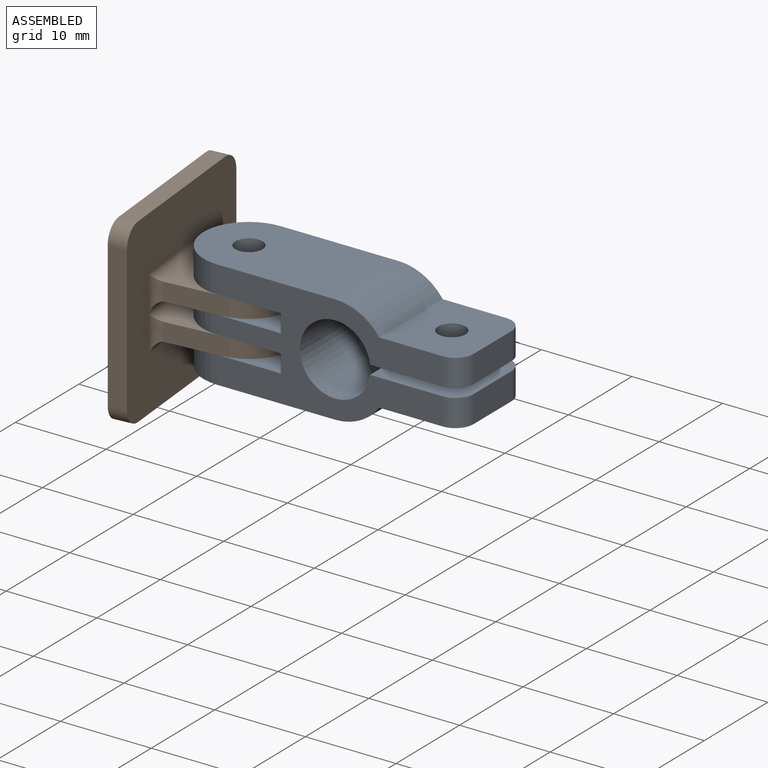
[diagram: assembled view]
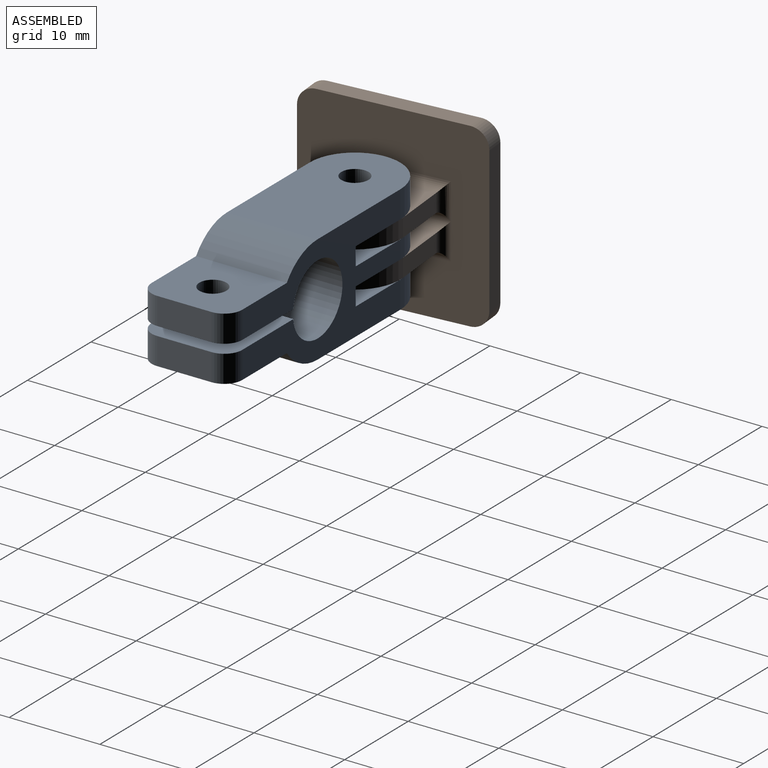
[diagram: assembled view, second angle]
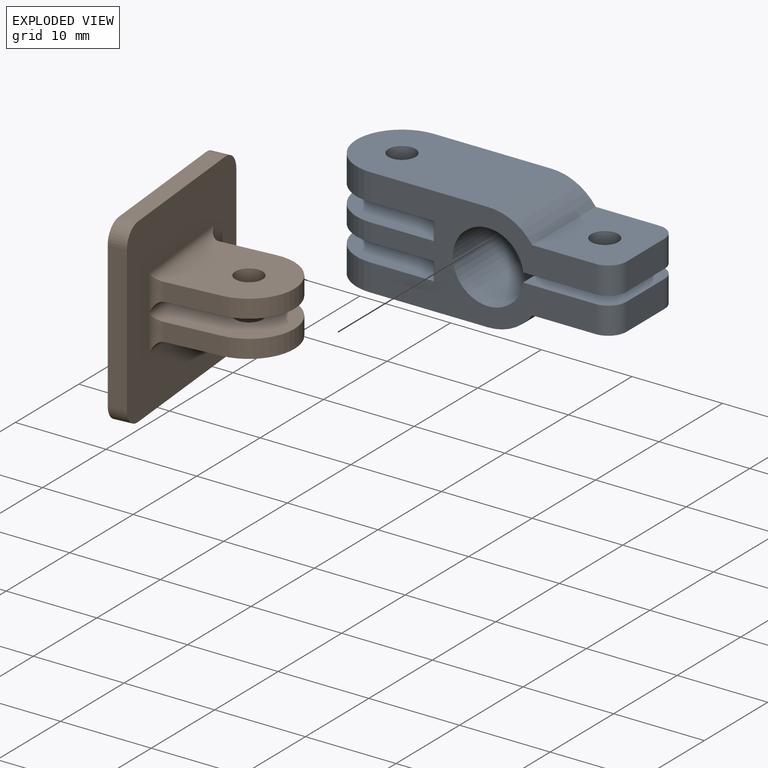
[diagram: exploded view]
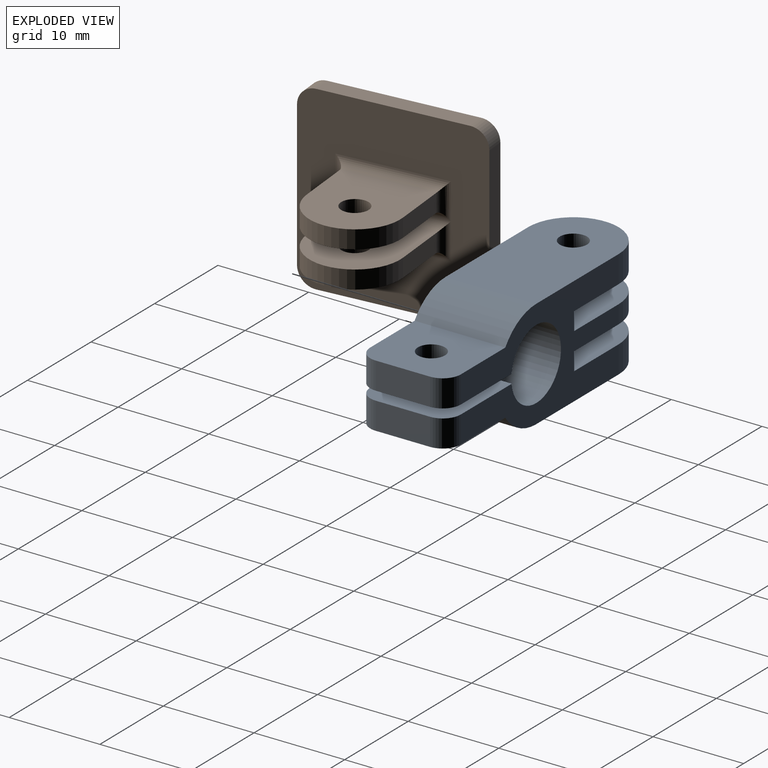
[diagram: exploded view, second angle]
ASSEMBLY  parts=2 mates=2
PART A: 31 faces, bbox 31.9x10x12 mm
  f0: plane 18x10mm, normal (0,0,1), area 162.2mm2, adj f9,f17,f18,f22,f24
  f1: plane 12x10mm, normal (0,0,-1), area 102.2mm2, adj f10,f17,f18,f22,f24
  f2: plane 12x10mm, normal (0,0,1), area 102.2mm2, adj f10,f17,f18,f21,f25
  f3: plane 12x10mm, normal (0,0,-1), area 102.2mm2, adj f11,f17,f18,f21,f25
  f4: plane 12x10mm, normal (0,0,1), area 102.2mm2, adj f11,f17,f18,f20,f26
  f5: cylinder r=3.9mm len=10mm, axis (0,1,0), area 235mm2, adj f6,f16,f17,f18
  f6: plane 10x10mm, normal (0,0,-1), area 91.2mm2, adj f5,f7,f17,f18,f23,f28,f30
  f7: plane 6x3mm, normal (1,0,0), area 18mm2, adj f6,f8,f28,f30
  f8: plane 10x8.99mm, normal (0,0,1), area 81.2mm2, adj f7,f9,f17,f18,f23,f28,f30
  f9: cylinder r=6mm len=10mm, axis (0,1,0), area 56.9mm2, adj f0,f8,f17,f18
  f10: plane 10x2mm, normal (-1,0,0), area 20mm2, adj f1,f2,f17,f18
  f11: plane 10x2mm, normal (-1,0,0), area 20mm2, adj f3,f4,f17,f18
  f12: plane 18x10mm, normal (0,0,-1), area 162.2mm2, adj f13,f17,f18,f20,f26
  f13: cylinder r=6mm len=10mm, axis (0,1,0), area 56.9mm2, adj f12,f14,f17,f18
  f14: plane 10x8.99mm, normal (0,0,-1), area 81.2mm2, adj f13,f15,f17,f18,f19,f27,f29
  f15: plane 6x3mm, normal (1,0,0), area 18mm2, adj f14,f16,f27,f29
  f16: plane 10x10mm, normal (0,0,1), area 91.2mm2, adj f5,f15,f17,f18,f19,f27,f29
  f17: plane 24.87x12mm, normal (0,-1,0), area 172.4mm2, adj f0,f1,f2,f3,f4,f5,f6,f8
  f18: plane 24.87x12mm, normal (0,1,0), area 172.4mm2, adj f0,f1,f2,f3,f4,f5,f6,f8
  f19: cylinder r=1.5mm len=3mm, axis (0,0,-1), area 28.3mm2, adj f14,f16
  f20: cylinder r=1.5mm len=3mm, axis (0,0,-1), area 28.3mm2, adj f4,f12
  f21: cylinder r=1.5mm len=3mm, axis (0,0,-1), area 18.8mm2, adj f2,f3
  f22: cylinder r=1.5mm len=3mm, axis (0,0,-1), area 28.3mm2, adj f0,f1
  f23: cylinder r=1.5mm len=3mm, axis (0,0,-1), area 28.3mm2, adj f6,f8
  f24: cylinder r=5mm len=10mm, axis (0,0,-1), area 47.1mm2, adj f0,f1,f17,f18
  f25: cylinder r=5mm len=10mm, axis (0,0,-1), area 31.4mm2, adj f2,f3,f17,f18
  f26: cylinder r=5mm len=10mm, axis (0,0,-1), area 47.1mm2, adj f4,f12,f17,f18
  f27: cylinder r=2mm len=3mm, axis (0,0,1), area 9.4mm2, adj f14,f15,f16,f18
  f28: cylinder r=2mm len=3mm, axis (0,0,1), area 9.4mm2, adj f6,f7,f8,f18
  f29: cylinder r=2mm len=3mm, axis (0,0,-1), area 9.4mm2, adj f14,f15,f16,f17
  f30: cylinder r=2mm len=3mm, axis (0,0,-1), area 9.4mm2, adj f6,f7,f8,f17
PART B: 29 faces, bbox 20x14x20 mm
  f0: plane 6x2mm, normal (0,0,1), area 12mm2, adj f2,f13,f15,f20
  f1: plane 6x2mm, normal (0,0,-1), area 12mm2, adj f2,f13,f15,f19
  f2: plane 11x10mm, normal (1,0,0), area 92.2mm2, adj f0,f1,f15,f16,f21
  f3: plane 6x2mm, normal (0,0,1), area 12mm2, adj f4,f6,f14,f22
  f4: plane 11x10mm, normal (-1,0,0), area 92.2mm2, adj f3,f5,f14,f17,f21
  f5: plane 6x2mm, normal (0,0,-1), area 12mm2, adj f4,f6,f14,f24
  f6: plane 11x10mm, normal (1,0,0), area 92.2mm2, adj f3,f5,f14,f17,f23
  f7: plane 20x20mm, normal (0,-1,0), area 300.6mm2, adj f8,f9,f10,f11,f18,f19,f20,f22
  f8: plane 16x2mm, normal (0,0,1), area 32mm2, adj f7,f12,f25,f28
  f9: plane 16x2mm, normal (-1,0,0), area 32mm2, adj f7,f12,f25,f26
  f10: plane 16x2mm, normal (0,0,-1), area 32mm2, adj f7,f12,f26,f27
  f11: plane 16x2mm, normal (1,0,0), area 32mm2, adj f7,f12,f27,f28
  f12: plane 20x20mm, normal (0,1,0), area 396.6mm2, adj f8,f9,f10,f11,f25,f26,f27,f28
  f13: plane 11x10mm, normal (-1,0,0), area 92.2mm2, adj f0,f1,f15,f16,f18
  f14: cylinder r=5mm len=10mm, axis (-1,0,0), area 31.4mm2, adj f3,f4,f5,f6
  f15: cylinder r=5mm len=10mm, axis (-1,0,0), area 31.4mm2, adj f0,f1,f2,f13
  f16: cylinder r=1.5mm len=3mm, axis (-1,0,0), area 18.8mm2, adj f2,f13
  f17: cylinder r=1.5mm len=3mm, axis (-1,0,0), area 18.8mm2, adj f4,f6
  f18: cylinder r=1mm len=12mm, axis (0,0,-1), area 16.8mm2, adj f7,f13,f19,f20
  f19: cylinder r=1mm len=4mm, axis (1,0,0), area 4.3mm2, adj f1,f7,f18,f21
  f20: cylinder r=1mm len=4mm, axis (-1,0,0), area 4.3mm2, adj f0,f7,f18,f21
  f21: cylinder r=1mm len=12mm, axis (0,0,1), area 33.7mm2, adj f2,f4,f19,f20,f22,f24
  f22: cylinder r=1mm len=4mm, axis (-1,0,0), area 4.3mm2, adj f3,f7,f21,f23
  f23: cylinder r=1mm len=12mm, axis (0,0,1), area 16.8mm2, adj f6,f7,f22,f24
  f24: cylinder r=1mm len=4mm, axis (1,0,0), area 4.3mm2, adj f5,f7,f21,f23
  f25: cylinder r=2mm len=2mm, axis (0,-1,0), area 6.3mm2, adj f7,f8,f9,f12
  f26: cylinder r=2mm len=2mm, axis (0,1,0), area 6.3mm2, adj f7,f9,f10,f12
  f27: cylinder r=2mm len=2mm, axis (0,-1,0), area 6.3mm2, adj f7,f10,f11,f12
  f28: cylinder r=2mm len=2mm, axis (0,1,0), area 6.3mm2, adj f7,f8,f11,f12
PLACE A t=(1.38,6.99,2.71)mm fixed
PLACE B rot(axis=(0.59,-0.54,0.59),123.2deg) t=(-20.58,1.15,2.71)mm
MATE planar B.f13 <-> A.f4  axis (0,0,-1) through (-12.66,1.9,-0.29)mm
MATE cylindrical B.f16 <-> A.f20  axis (0,0,-1) through (-11.62,1.99,-0.29)mm
